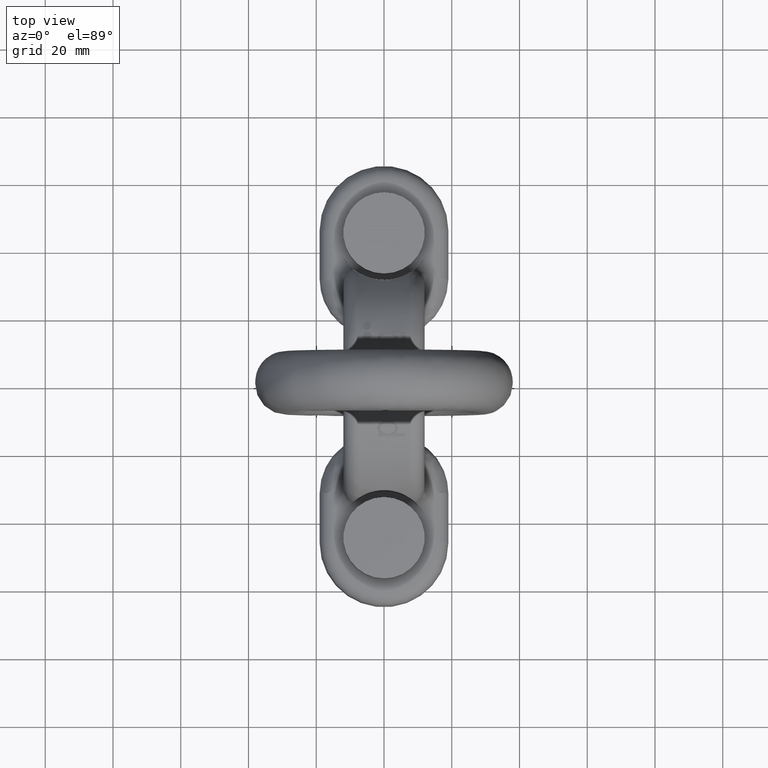
[diagram: clean part render]
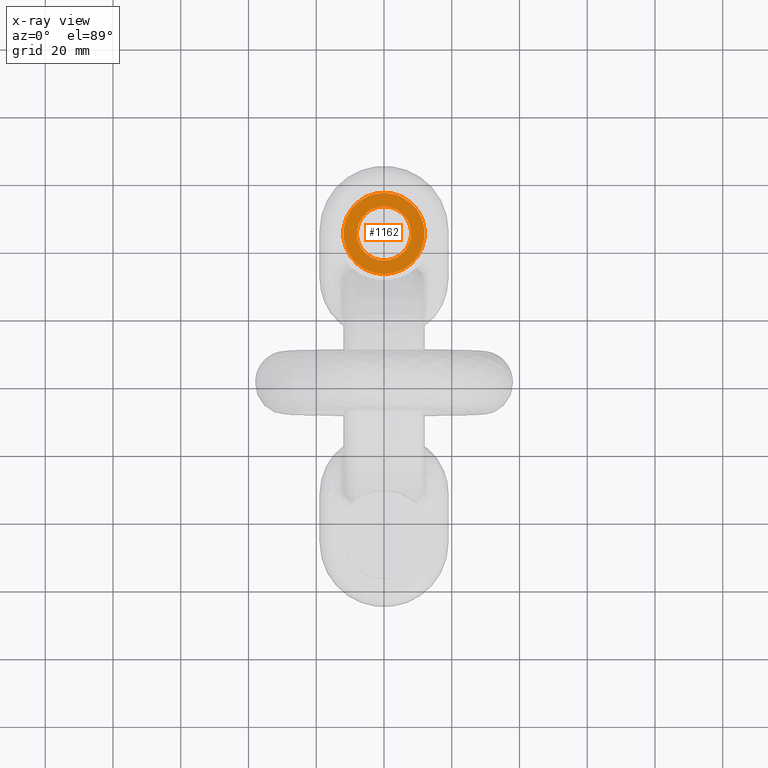
[diagram: x-ray — body ghosted, one internal face saturated and labeled with its STEP entity id]
A machine part, top view, then the same camera in x-ray: the body is ghosted and one INTERNAL B-rep face — a face not visible from any outside direction — is saturated and labeled: STEP entity #1162.
In plain terms, the highlighted planar face has unit normal (0, 0, -1).
Its self-contained STEP definition (entity closure, byte-faithful):
#797=PLANE('',#3756);
#1162=ADVANCED_FACE('',(#1523,#1524),#797,.T.);
#1523=FACE_BOUND('',#1728,.T.);
#1524=FACE_BOUND('',#1729,.T.);
#1728=EDGE_LOOP('',(#2858));
#1729=EDGE_LOOP('',(#2859));
#2044=CIRCLE('',#3752,12.);
#2045=CIRCLE('',#3755,8.);
#2858=ORIENTED_EDGE('',*,*,#3535,.T.);
#2859=ORIENTED_EDGE('',*,*,#3534,.T.);
#3126=VERTEX_POINT('',#8018);
#3127=VERTEX_POINT('',#8022);
#3534=EDGE_CURVE('',#3126,#3126,#2044,.T.);
#3535=EDGE_CURVE('',#3127,#3127,#2045,.T.);
#3752=AXIS2_PLACEMENT_3D('',#8017,#4307,#4308);
#3755=AXIS2_PLACEMENT_3D('',#8021,#4313,#4314);
#3756=AXIS2_PLACEMENT_3D('',#8023,#4315,#4316);
#4307=DIRECTION('',(0.,0.,-1.));
#4308=DIRECTION('',(-6.12323399573677E-17,1.,0.));
#4313=DIRECTION('',(0.,0.,1.));
#4314=DIRECTION('',(6.12323399573677E-17,1.,0.));
#4315=DIRECTION('',(0.,0.,-1.));
#4316=DIRECTION('',(-1.,0.,0.));
#8017=CARTESIAN_POINT('',(0.,45.,20.));
#8018=CARTESIAN_POINT('',(-7.34788079488412E-16,57.,20.));
#8021=CARTESIAN_POINT('',(0.,45.,20.));
#8022=CARTESIAN_POINT('',(4.89858719658941E-16,53.,20.));
#8023=CARTESIAN_POINT('',(0.,45.,20.));